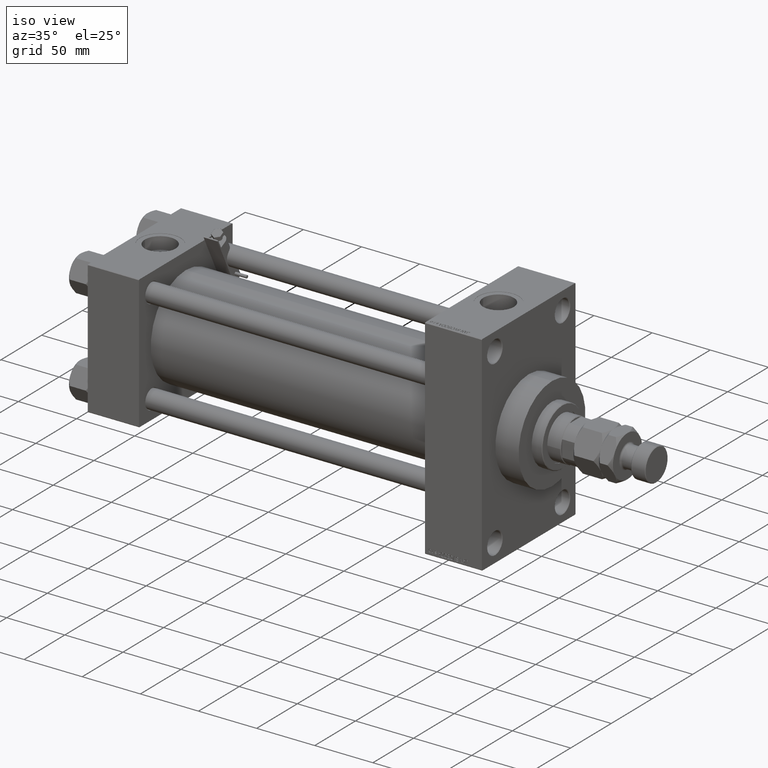
[diagram: clean part render]
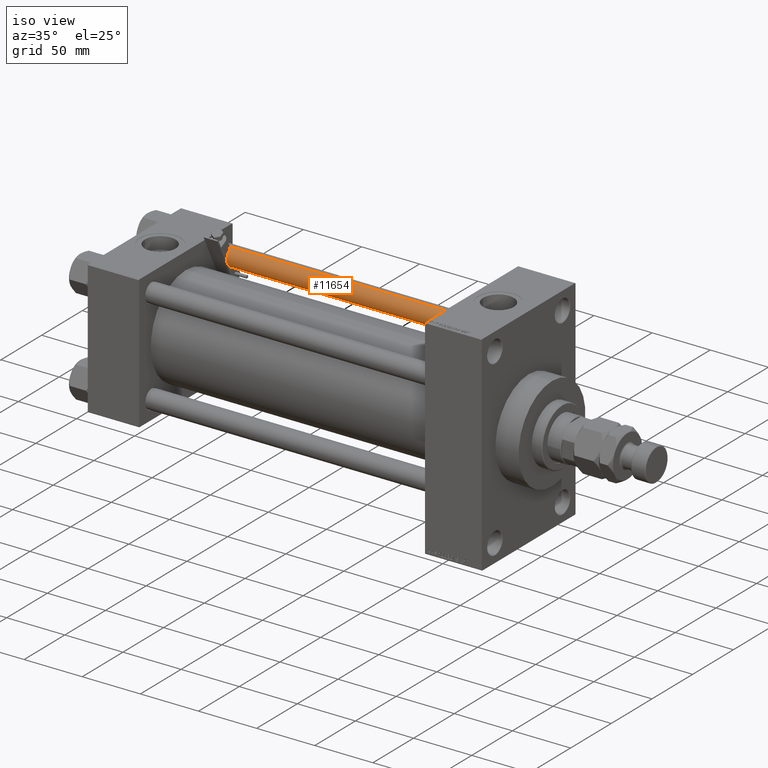
[diagram: same view with one face highlighted and labeled with its STEP entity id]
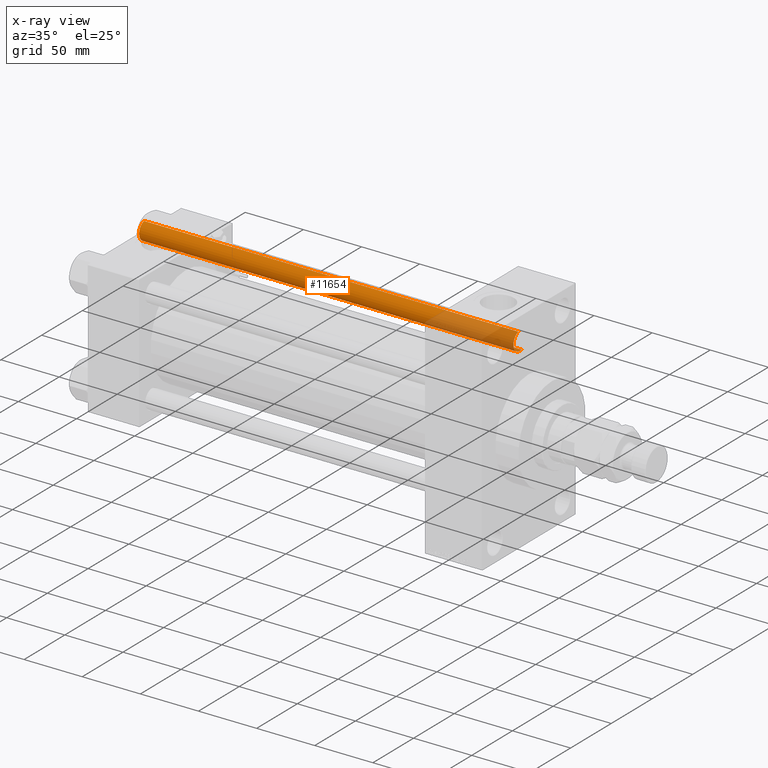
[diagram: x-ray of the same camera — body ghosted, the highlighted face saturated]
A machine part, iso view. The second image highlights one B-rep face of the part: STEP entity #11654.
The next image is the same camera in x-ray: the body ghosted, the highlighted face saturated — about 22% of this face is hidden behind the body in this view.
In plain terms, the highlighted cylindrical surface (edge-blend (fillet) strip) has radius 8 mm, axis along (-1, -0, 0).
Its self-contained STEP definition (entity closure, byte-faithful):
#144 = DIRECTION ( 'NONE',  ( -0.000000000000000000, -0.000000000000000000, 1.000000000000000000 ) ) ;
#2920 = CIRCLE ( 'NONE', #9442, 8.000000000000000000 ) ;
#3752 = VERTEX_POINT ( 'NONE', #7194 ) ;
#4210 = DIRECTION ( 'NONE',  ( 1.000000000000000000, 0.000000000000000000, 0.000000000000000000 ) ) ;
#4813 = ORIENTED_EDGE ( 'NONE', *, *, #50270, .F. ) ;
#5933 = DIRECTION ( 'NONE',  ( -0.000000000000000000, -0.000000000000000000, -1.000000000000000000 ) ) ;
#6437 = LINE ( 'NONE', #33738, #35832 ) ;
#6785 = CARTESIAN_POINT ( 'NONE',  ( 0.000000000000000000, 0.000000000000000000, 323.0000000000000000 ) ) ;
#7194 = CARTESIAN_POINT ( 'NONE',  ( -8.000000000000000000, 0.000000000000000000, 322.5000000000000000 ) ) ;
#9121 = DIRECTION ( 'NONE',  ( 1.000000000000000000, 0.000000000000000000, 0.000000000000000000 ) ) ;
#9442 = AXIS2_PLACEMENT_3D ( 'NONE', #44085, #47409, #9121 ) ;
#11581 = AXIS2_PLACEMENT_3D ( 'NONE', #31021, #144, #4210 ) ;
#11654 = ADVANCED_FACE ( 'NONE', ( #41741 ), #15199, .T. ) ;
#11660 = VERTEX_POINT ( 'NONE', #18527 ) ;
#14724 = ORIENTED_EDGE ( 'NONE', *, *, #15565, .T. ) ;
#15199 = CYLINDRICAL_SURFACE ( 'NONE', #25755, 8.000000000000000000 ) ;
#15565 = EDGE_CURVE ( 'NONE', #47470, #47785, #33608, .T. ) ;
#15625 = DIRECTION ( 'NONE',  ( -0.000000000000000000, -0.000000000000000000, -1.000000000000000000 ) ) ;
#17524 = CARTESIAN_POINT ( 'NONE',  ( 8.000000000000000000, 9.797174393178825657E-16, 0.5000000000000004441 ) ) ;
#18210 = ORIENTED_EDGE ( 'NONE', *, *, #28902, .T. ) ;
#18527 = CARTESIAN_POINT ( 'NONE',  ( 8.000000000000000000, 9.797174393178825657E-16, 322.5000000000000000 ) ) ;
#22668 = CARTESIAN_POINT ( 'NONE',  ( -8.000000000000000000, 0.000000000000000000, 0.5000000000000004441 ) ) ;
#23105 = DIRECTION ( 'NONE',  ( -1.000000000000000000, 0.000000000000000000, 0.000000000000000000 ) ) ;
#24921 = EDGE_LOOP ( 'NONE', ( #4813, #39059, #18210, #14724 ) ) ;
#25755 = AXIS2_PLACEMENT_3D ( 'NONE', #6785, #30765, #23105 ) ;
#28902 = EDGE_CURVE ( 'NONE', #3752, #47470, #46519, .T. ) ;
#29832 = VECTOR ( 'NONE', #15625, 1000.000000000000000 ) ;
#30765 = DIRECTION ( 'NONE',  ( -0.000000000000000000, -0.000000000000000000, -1.000000000000000000 ) ) ;
#31021 = CARTESIAN_POINT ( 'NONE',  ( 0.000000000000000000, 0.000000000000000000, 0.5000000000000004441 ) ) ;
#31124 = EDGE_CURVE ( 'NONE', #11660, #3752, #2920, .T. ) ;
#33608 = CIRCLE ( 'NONE', #11581, 8.000000000000000000 ) ;
#33738 = CARTESIAN_POINT ( 'NONE',  ( 8.000000000000000000, 9.797174393178825657E-16, 323.0000000000000000 ) ) ;
#35832 = VECTOR ( 'NONE', #5933, 1000.000000000000000 ) ;
#38346 = CARTESIAN_POINT ( 'NONE',  ( -8.000000000000000000, 0.000000000000000000, 323.0000000000000000 ) ) ;
#39059 = ORIENTED_EDGE ( 'NONE', *, *, #31124, .T. ) ;
#41741 = FACE_OUTER_BOUND ( 'NONE', #24921, .T. ) ;
#44085 = CARTESIAN_POINT ( 'NONE',  ( 0.000000000000000000, 0.000000000000000000, 322.5000000000000000 ) ) ;
#46519 = LINE ( 'NONE', #38346, #29832 ) ;
#47409 = DIRECTION ( 'NONE',  ( 0.000000000000000000, 0.000000000000000000, -1.000000000000000000 ) ) ;
#47470 = VERTEX_POINT ( 'NONE', #22668 ) ;
#47785 = VERTEX_POINT ( 'NONE', #17524 ) ;
#50270 = EDGE_CURVE ( 'NONE', #11660, #47785, #6437, .T. ) ;